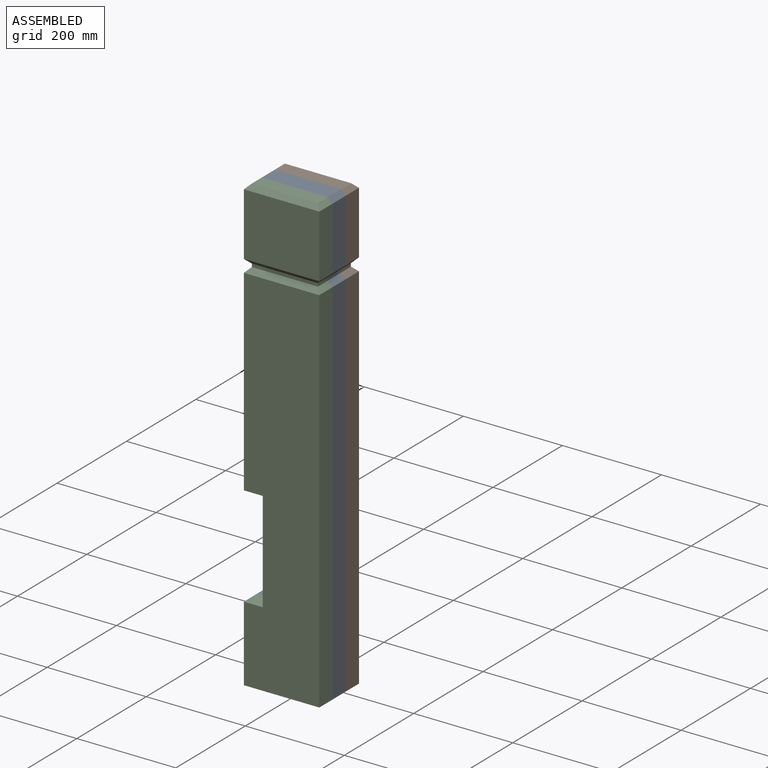
[diagram: assembled view]
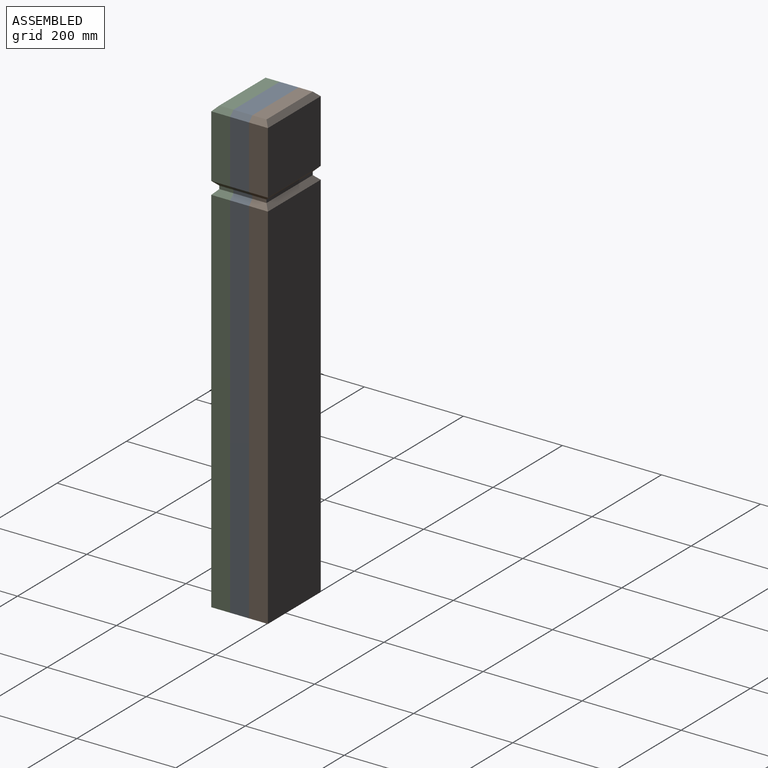
[diagram: assembled view, second angle]
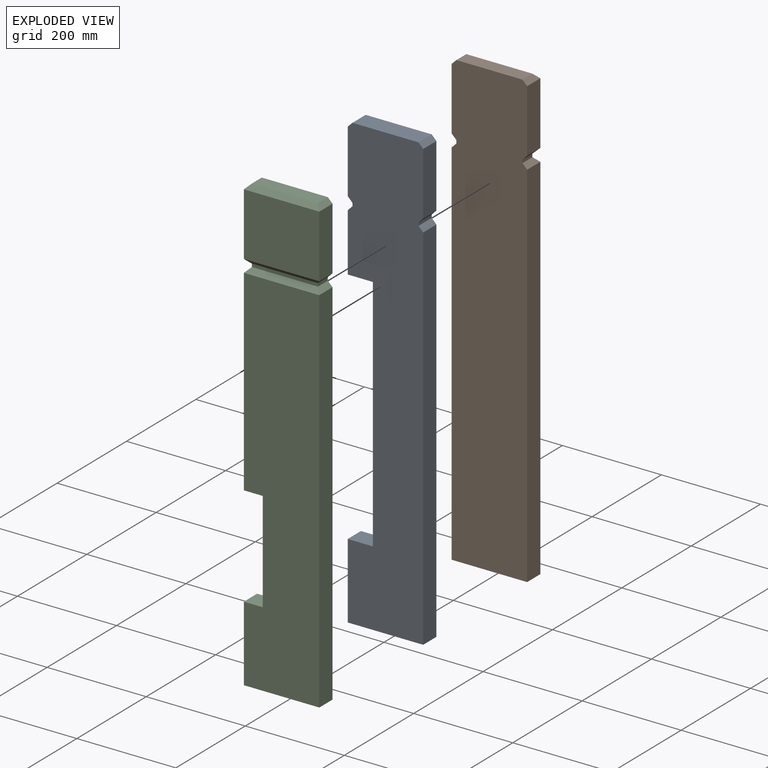
[diagram: exploded view]
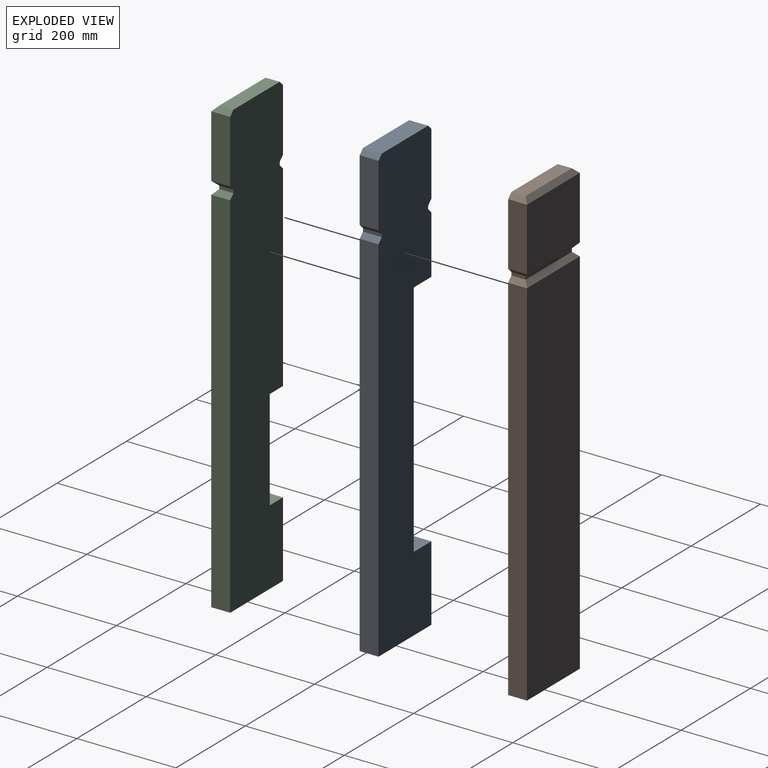
[diagram: exploded view, second angle]
ASSEMBLY  parts=3 mates=2
PART A: 20 faces, bbox 152.4x38.1x914.4 mm
  f0: plane 914.4x152.4mm, normal (0,-1,0), area 114445.3mm2, adj f2,f3,f4,f5,f6,f7,f8,f9
  f1: plane 914.4x152.4mm, normal (0,1,0), area 114445.3mm2, adj f2,f3,f4,f5,f6,f7,f8,f9
  f2: plane 117.48x38.1mm, normal (1,0,0), area 4475.8mm2, adj f0,f1,f14,f19
  f3: plane 127x38.1mm, normal (-1,0,0), area 4838.7mm2, adj f0,f1,f9,f16
  f4: plane 127x38.1mm, normal (1,0,0), area 4838.7mm2, adj f0,f1,f12,f15
  f5: plane 133.35x38.1mm, normal (0,0,1), area 5080.6mm2, adj f0,f1,f15,f16
  f6: plane 752.48x38.1mm, normal (-1,0,0), area 28669.3mm2, adj f0,f1,f7,f10
  f7: plane 152.4x38.1mm, normal (0,0,-1), area 5806.4mm2, adj f0,f1,f6,f8
  f8: plane 152.4x38.1mm, normal (1,0,0), area 5806.4mm2, adj f0,f1,f7,f18
  f9: plane 38.1x9.53mm, normal (-0.71,0,-0.71), area 513.2mm2, adj f0,f1,f3,f11
  f10: plane 38.1x9.53mm, normal (-0.71,0,0.71), area 513.2mm2, adj f0,f1,f6,f11
  f11: plane 38.1x6.35mm, normal (-1,0,0), area 241.9mm2, adj f0,f1,f9,f10
  f12: plane 38.1x9.53mm, normal (0.71,0,-0.71), area 513.2mm2, adj f0,f1,f4,f13
  f13: plane 38.1x6.35mm, normal (1,0,0), area 241.9mm2, adj f0,f1,f12,f14
  f14: plane 38.1x9.53mm, normal (0.71,0,0.71), area 513.2mm2, adj f0,f1,f2,f13
  f15: plane 38.1x9.53mm, normal (0.71,0,0.71), area 513.2mm2, adj f0,f1,f4,f5
  f16: plane 38.1x9.53mm, normal (-0.71,0,0.71), area 513.2mm2, adj f0,f1,f3,f5
  f17: plane 482.6x38.1mm, normal (1,0,0), area 18387.1mm2, adj f0,f1,f18,f19
  f18: plane 50.8x38.1mm, normal (0,0,1), area 1935.5mm2, adj f0,f1,f8,f17
  f19: plane 50.8x38.1mm, normal (0,0,-1), area 1935.5mm2, adj f0,f1,f2,f17
PART B: 21 faces, bbox 152.4x38.1x914.4 mm
  f0: plane 152.4x127mm, normal (0,1,0), area 19354.8mm2, adj f3,f4,f17,f18
  f1: plane 38.1x9.53mm, normal (0.71,0,0.71), area 449.1mm2, adj f4,f5,f6,f17
  f2: plane 38.1x9.53mm, normal (-0.71,0,0.71), area 449.1mm2, adj f3,f5,f6,f17
  f3: plane 127x38.1mm, normal (-1,0,0), area 4838.7mm2, adj f0,f2,f6,f11
  f4: plane 127x38.1mm, normal (1,0,0), area 4838.7mm2, adj f0,f1,f6,f14
  f5: plane 133.35x28.58mm, normal (0,0,1), area 3810.5mm2, adj f1,f2,f6,f17
  f6: plane 914.4x152.4mm, normal (0,-1,0), area 138961.4mm2, adj f1,f2,f3,f4,f5,f8,f9,f10
  f7: plane 752.48x152.4mm, normal (0,1,0), area 114677.2mm2, adj f8,f9,f10,f20
  f8: plane 752.48x38.1mm, normal (-1,0,0), area 28669.3mm2, adj f6,f7,f9,f12
  f9: plane 152.4x38.1mm, normal (0,0,-1), area 5806.4mm2, adj f6,f7,f8,f10
  f10: plane 752.48x38.1mm, normal (1,0,0), area 28669.3mm2, adj f6,f7,f9,f16
  f11: plane 38.1x9.53mm, normal (-0.71,0,-0.71), area 449.1mm2, adj f3,f6,f13,f18
  f12: plane 38.1x9.53mm, normal (-0.71,0,0.71), area 449.1mm2, adj f6,f8,f13,f20
  f13: plane 28.58x6.35mm, normal (-1,0,0), area 181.5mm2, adj f6,f11,f12,f19
  f14: plane 38.1x9.53mm, normal (0.71,0,-0.71), area 449.1mm2, adj f4,f6,f15,f18
  f15: plane 28.58x6.35mm, normal (1,0,0), area 181.5mm2, adj f6,f14,f16,f19
  f16: plane 38.1x9.53mm, normal (0.71,0,0.71), area 449.1mm2, adj f6,f10,f15,f20
  f17: plane 152.4x9.53mm, normal (0,0.71,0.71), area 1924.6mm2, adj f0,f1,f2,f5
  f18: plane 152.4x9.53mm, normal (0,0.71,-0.71), area 1924.6mm2, adj f0,f11,f14,f19
  f19: plane 133.35x6.35mm, normal (0,1,0), area 846.8mm2, adj f13,f15,f18,f20
  f20: plane 152.4x9.53mm, normal (0,0.71,0.71), area 1924.6mm2, adj f7,f12,f16,f19
PART C: 25 faces, bbox 152.4x38.1x914.4 mm
  f0: plane 152.4x127mm, normal (0,1,0), area 19354.8mm2, adj f4,f5,f21,f22
  f1: plane 38.1x9.53mm, normal (0.71,0,0.71), area 449.1mm2, adj f5,f6,f7,f21
  f2: plane 38.1x9.53mm, normal (-0.71,0,0.71), area 449.1mm2, adj f4,f6,f7,f21
  f3: plane 396.88x38.1mm, normal (1,0,0), area 15120.9mm2, adj f7,f8,f17,f18
  f4: plane 127x38.1mm, normal (-1,0,0), area 4838.7mm2, adj f0,f2,f7,f12
  f5: plane 127x38.1mm, normal (1,0,0), area 4838.7mm2, adj f0,f1,f7,f15
  f6: plane 133.35x28.58mm, normal (0,0,1), area 3810.5mm2, adj f1,f2,f7,f21
  f7: plane 914.4x152.4mm, normal (0,-1,0), area 131219.5mm2, adj f1,f2,f3,f4,f5,f6,f9,f10
  f8: plane 752.48x152.4mm, normal (0,1,0), area 106935.3mm2, adj f3,f9,f10,f11,f18,f19,f20,f24
  f9: plane 752.48x38.1mm, normal (-1,0,0), area 28669.3mm2, adj f7,f8,f10,f13
  f10: plane 152.4x38.1mm, normal (0,0,-1), area 5806.4mm2, adj f7,f8,f9,f11
  f11: plane 152.4x38.1mm, normal (1,0,0), area 5806.4mm2, adj f7,f8,f10,f20
  f12: plane 38.1x9.53mm, normal (-0.71,0,-0.71), area 449.1mm2, adj f4,f7,f14,f22
  f13: plane 38.1x9.53mm, normal (-0.71,0,0.71), area 449.1mm2, adj f7,f9,f14,f24
  f14: plane 28.58x6.35mm, normal (-1,0,0), area 181.5mm2, adj f7,f12,f13,f23
  f15: plane 38.1x9.53mm, normal (0.71,0,-0.71), area 449.1mm2, adj f5,f7,f16,f22
  f16: plane 28.58x6.35mm, normal (1,0,0), area 181.5mm2, adj f7,f15,f17,f23
  f17: plane 38.1x9.53mm, normal (0.71,0,0.71), area 449.1mm2, adj f3,f7,f16,f24
  f18: plane 38.1x38.1mm, normal (0,0,-1), area 1451.6mm2, adj f3,f7,f8,f19
  f19: plane 203.2x38.1mm, normal (1,0,0), area 7741.9mm2, adj f7,f8,f18,f20
  f20: plane 38.1x38.1mm, normal (0,0,1), area 1451.6mm2, adj f7,f8,f11,f19
  f21: plane 152.4x9.53mm, normal (0,0.71,0.71), area 1924.6mm2, adj f0,f1,f2,f6
  f22: plane 152.4x9.53mm, normal (0,0.71,-0.71), area 1924.6mm2, adj f0,f12,f15,f23
  f23: plane 133.35x6.35mm, normal (0,1,0), area 846.8mm2, adj f14,f16,f22,f24
  f24: plane 152.4x9.53mm, normal (0,0.71,0.71), area 1924.6mm2, adj f8,f13,f17,f23
PLACE A rot(axis=(0,0,1),180deg) t=(76.2,-57.15,0)mm
PLACE B t=(-76.2,19.05,0)mm
PLACE C rot(axis=(0,0,1),180deg) t=(76.2,-95.25,0)mm
MATE fastened B.f6 <-> A.f0  axis (0,-1,0) through (0,-19.05,0)mm
MATE fastened C.f7 <-> A.f1  axis (0,1,0) through (0,-57.15,0)mm
